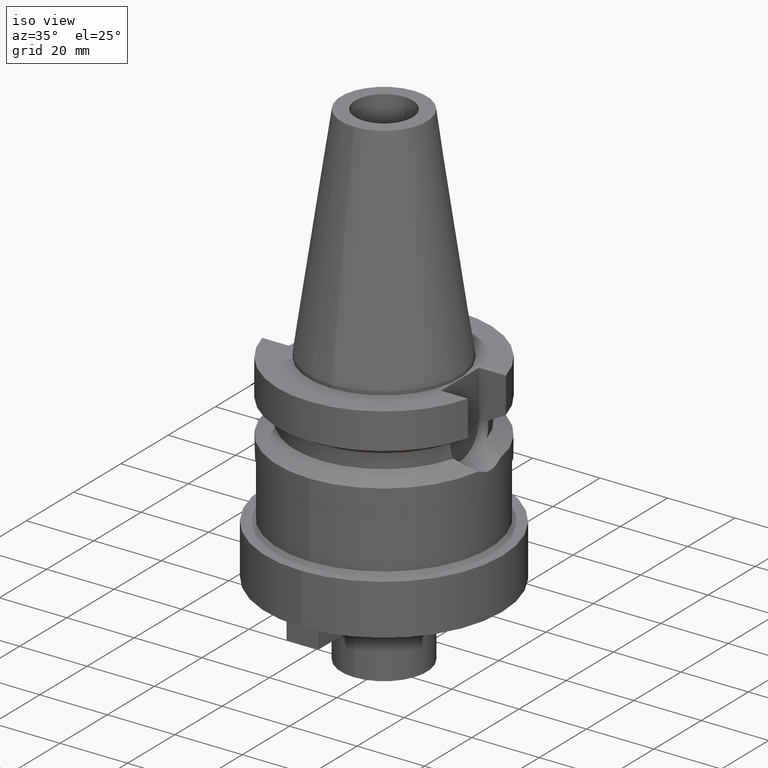
[diagram: clean part render]
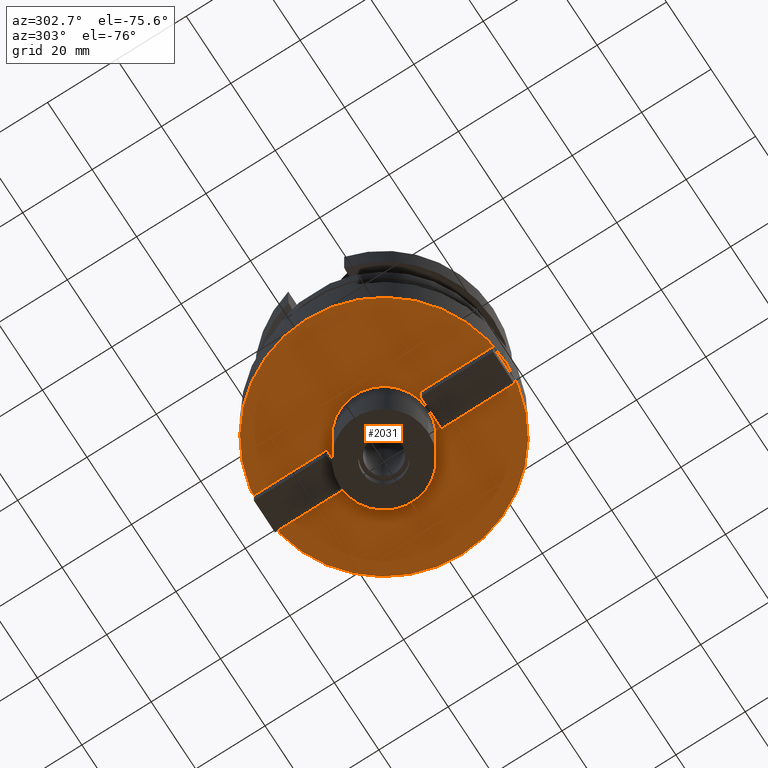
[diagram: tour spotlight — one face highlighted and labeled with its STEP entity id]
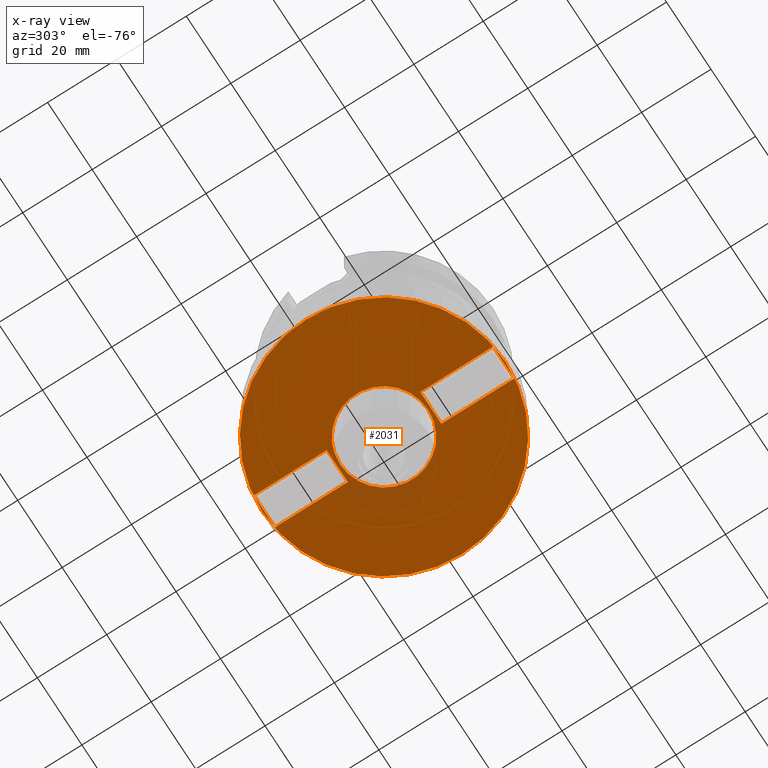
[diagram: x-ray of the same camera — body ghosted, this tour face saturated]
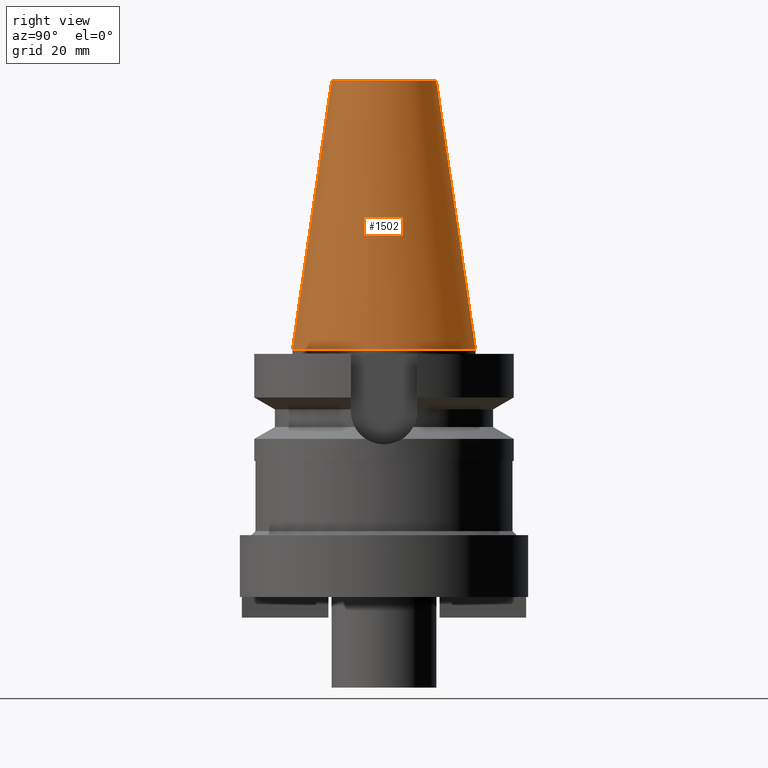
[diagram: tour spotlight — one face highlighted and labeled with its STEP entity id]
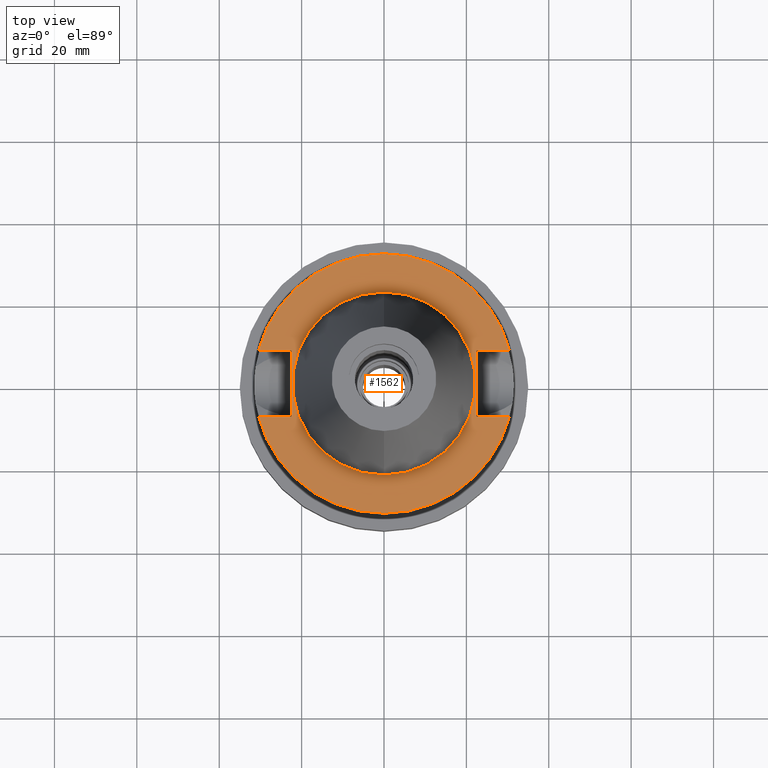
[diagram: tour spotlight — one face highlighted and labeled with its STEP entity id]
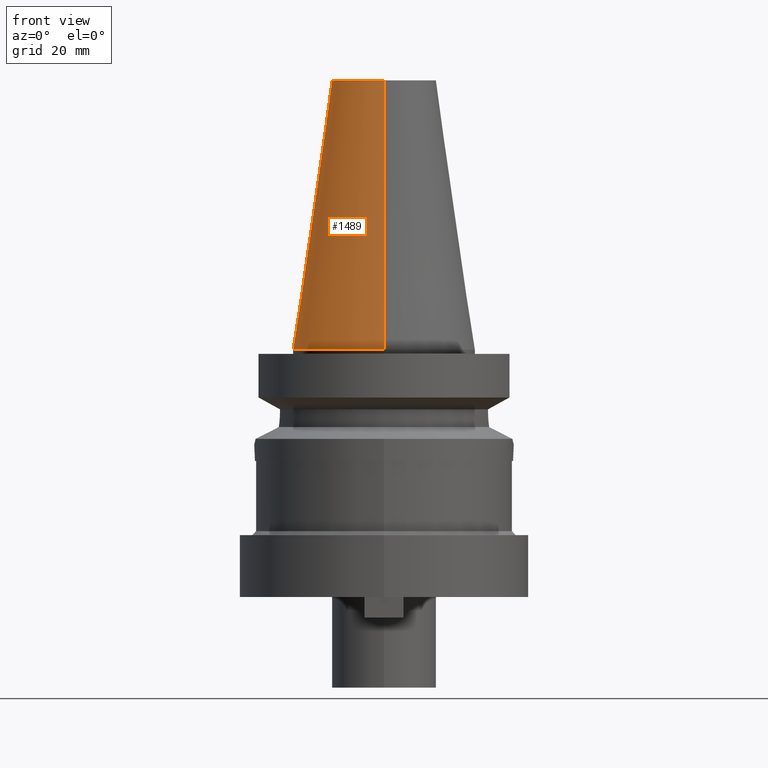
[diagram: tour spotlight — one face highlighted and labeled with its STEP entity id]
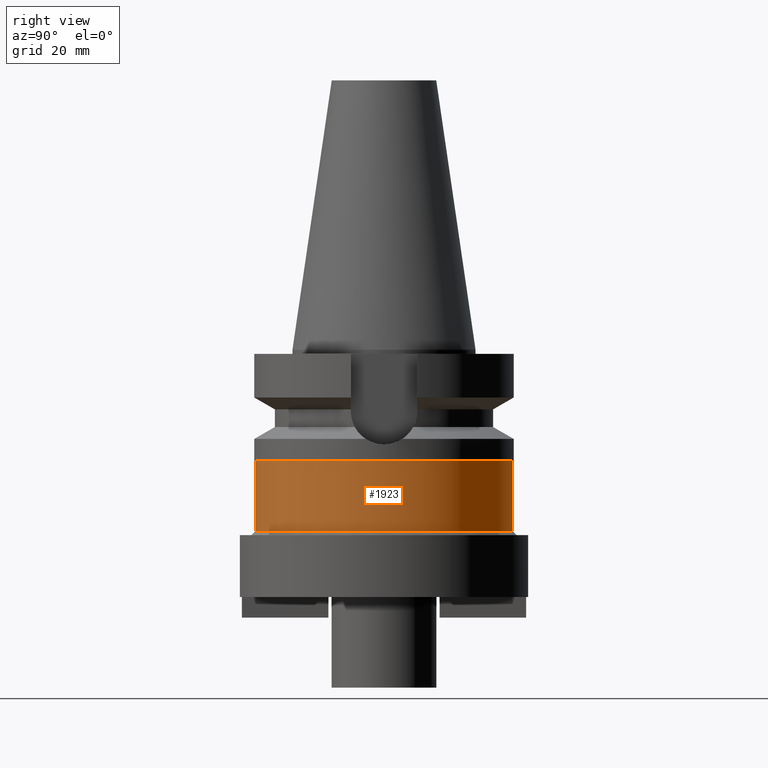
[diagram: tour spotlight — one face highlighted and labeled with its STEP entity id]
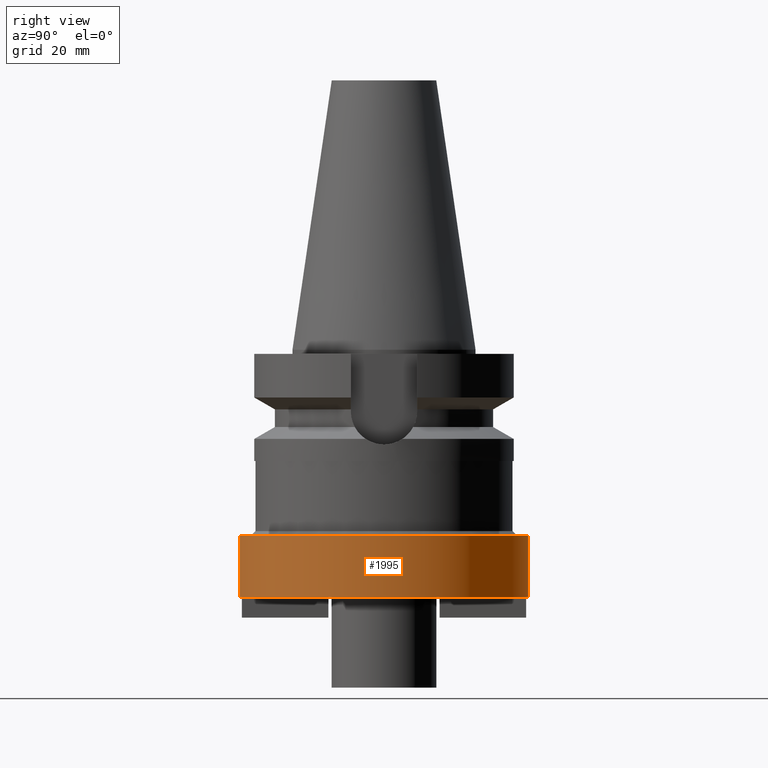
[diagram: tour spotlight — one face highlighted and labeled with its STEP entity id]
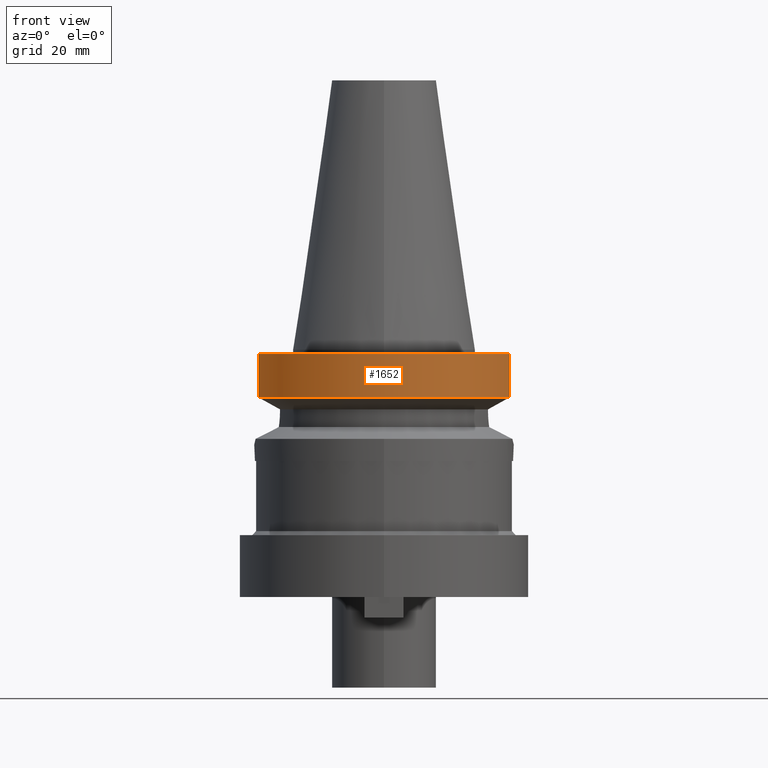
[diagram: tour spotlight — one face highlighted and labeled with its STEP entity id]
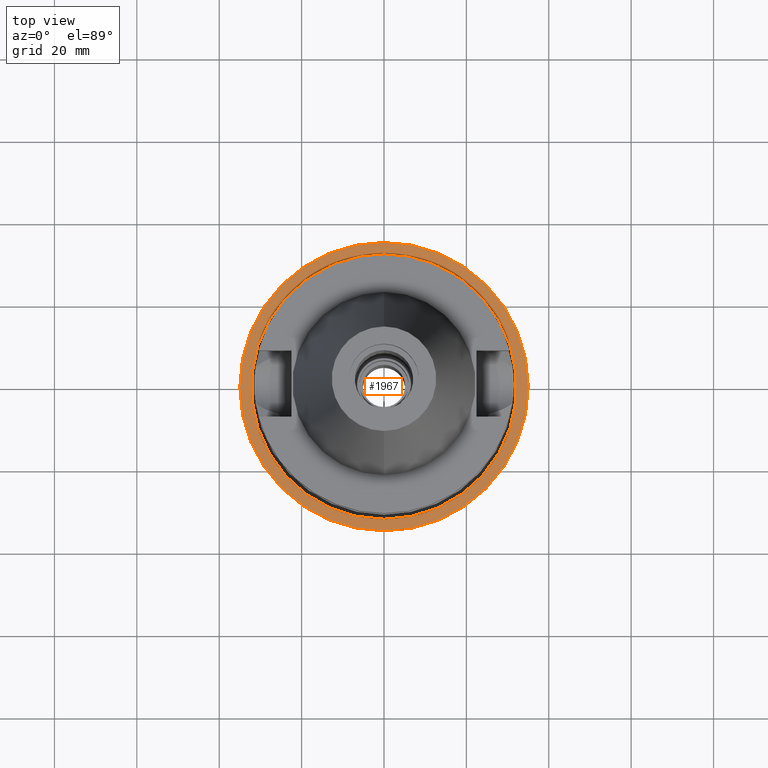
[diagram: tour spotlight — one face highlighted and labeled with its STEP entity id]
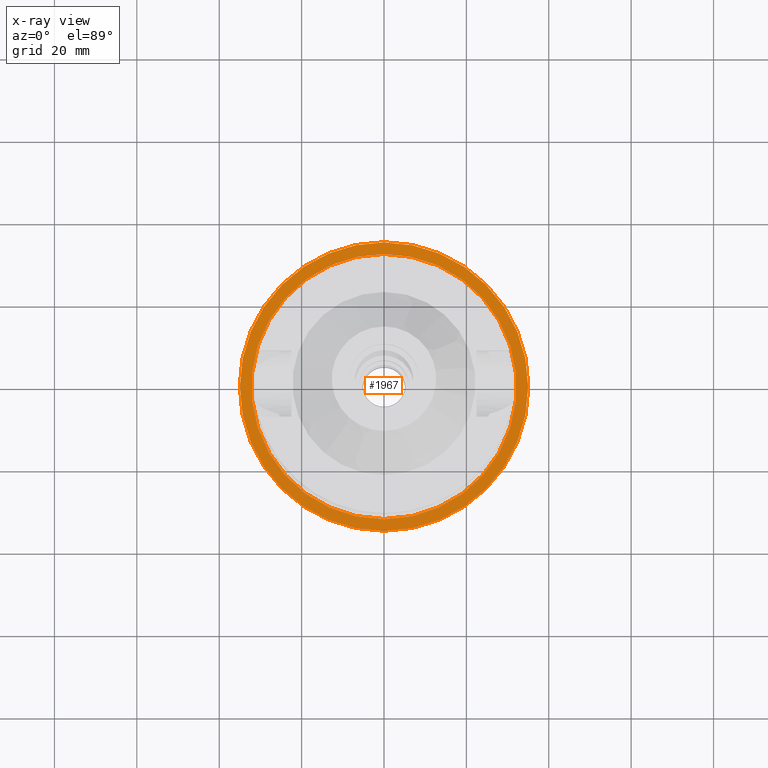
[diagram: x-ray of the same camera — body ghosted, this tour face saturated]
A machine part: a face-by-face anatomy tour. The part has 64 B-rep faces; the first image is the clean iso view, then the 8 largest visible faces are spotlighted one at a time (largest first), each with its STEP entity span.

Face 1 — auxiliary view, entity #2031. An x-ray twin of the same camera follows (body ghosted, this face saturated) — the face is partly hidden behind the body. In plain terms, the highlighted planar face has unit normal (0, 0, -1).
Definition (entity closure, byte-faithful):
#752=CARTESIAN_POINT('',(0.E0,2.115822274887E-14,-6.E1));
#753=DIRECTION('',(0.E0,0.E0,1.E0));
#754=DIRECTION('',(0.E0,-1.E0,0.E0));
#755=AXIS2_PLACEMENT_3D('',#752,#753,#754);
#760=CARTESIAN_POINT('',(0.E0,2.115822274887E-14,-6.E1));
#761=DIRECTION('',(0.E0,0.E0,1.E0));
#762=DIRECTION('',(0.E0,1.E0,0.E0));
#763=AXIS2_PLACEMENT_3D('',#760,#761,#762);
#768=CARTESIAN_POINT('',(0.E0,2.115822274887E-14,-6.E1));
#769=DIRECTION('',(0.E0,0.E0,-1.E0));
#770=DIRECTION('',(0.E0,-1.E0,0.E0));
#771=AXIS2_PLACEMENT_3D('',#768,#769,#770);
#776=CARTESIAN_POINT('',(0.E0,2.115822274887E-14,-6.E1));
#777=DIRECTION('',(0.E0,0.E0,-1.E0));
#778=DIRECTION('',(0.E0,1.E0,0.E0));
#779=AXIS2_PLACEMENT_3D('',#776,#777,#778);
#784=DIRECTION('',(0.E0,1.E0,0.E0));
#785=VECTOR('',#784,2.1E1);
#786=CARTESIAN_POINT('',(-4.75E0,1.35E1,-6.E1));
#787=LINE('',#786,#785);
#791=DIRECTION('',(-1.E0,0.E0,0.E0));
#792=VECTOR('',#791,9.5E0);
#793=CARTESIAN_POINT('',(4.75E0,1.35E1,-6.E1));
#794=LINE('',#793,#792);
#798=DIRECTION('',(0.E0,-1.E0,0.E0));
#799=VECTOR('',#798,2.1E1);
#800=CARTESIAN_POINT('',(4.75E0,-1.35E1,-6.E1));
#801=LINE('',#800,#799);
#805=DIRECTION('',(1.E0,0.E0,0.E0));
#806=VECTOR('',#805,9.5E0);
#807=CARTESIAN_POINT('',(-4.75E0,-1.35E1,-6.E1));
#808=LINE('',#807,#806);
#1130=DIRECTION('',(0.E0,1.E0,0.E0));
#1131=VECTOR('',#1130,2.1E1);
#1132=CARTESIAN_POINT('',(4.75E0,1.35E1,-6.E1));
#1133=LINE('',#1132,#1131);
#1158=DIRECTION('',(-1.E0,0.E0,0.E0));
#1159=VECTOR('',#1158,9.5E0);
#1160=CARTESIAN_POINT('',(4.75E0,3.45E1,-6.E1));
#1161=LINE('',#1160,#1159);
#1200=DIRECTION('',(0.E0,-1.E0,0.E0));
#1201=VECTOR('',#1200,2.1E1);
#1202=CARTESIAN_POINT('',(-4.75E0,-1.35E1,-6.E1));
#1203=LINE('',#1202,#1201);
#1228=DIRECTION('',(1.E0,0.E0,0.E0));
#1229=VECTOR('',#1228,9.5E0);
#1230=CARTESIAN_POINT('',(-4.75E0,-3.45E1,-6.E1));
#1231=LINE('',#1230,#1229);
#1312=CARTESIAN_POINT('',(0.E0,1.27E1,-6.E1));
#1313=VERTEX_POINT('',#1312);
#1314=CARTESIAN_POINT('',(0.E0,-1.27E1,-6.E1));
#1315=VERTEX_POINT('',#1314);
#1316=CARTESIAN_POINT('',(0.E0,-3.5E1,-6.E1));
#1317=CARTESIAN_POINT('',(0.E0,3.5E1,-6.E1));
#1318=VERTEX_POINT('',#1316);
#1319=VERTEX_POINT('',#1317);
#1320=CARTESIAN_POINT('',(-4.75E0,1.35E1,-6.E1));
#1321=CARTESIAN_POINT('',(-4.75E0,3.45E1,-6.E1));
#1322=VERTEX_POINT('',#1320);
#1323=VERTEX_POINT('',#1321);
#1324=CARTESIAN_POINT('',(4.75E0,3.45E1,-6.E1));
#1325=VERTEX_POINT('',#1324);
#1326=CARTESIAN_POINT('',(4.75E0,1.35E1,-6.E1));
#1327=VERTEX_POINT('',#1326);
#1328=CARTESIAN_POINT('',(4.75E0,-1.35E1,-6.E1));
#1329=CARTESIAN_POINT('',(4.75E0,-3.45E1,-6.E1));
#1330=VERTEX_POINT('',#1328);
#1331=VERTEX_POINT('',#1329);
#1332=CARTESIAN_POINT('',(-4.75E0,-3.45E1,-6.E1));
#1333=VERTEX_POINT('',#1332);
#1334=CARTESIAN_POINT('',(-4.75E0,-1.35E1,-6.E1));
#1335=VERTEX_POINT('',#1334);
#1996=CARTESIAN_POINT('',(0.E0,0.E0,-6.E1));
#1997=DIRECTION('',(0.E0,0.E0,-1.E0));
#1998=DIRECTION('',(0.E0,-1.E0,0.E0));
#1999=AXIS2_PLACEMENT_3D('',#1996,#1997,#1998);
#2000=PLANE('',#1999);
#2001=ORIENTED_EDGE('',*,*,#1989,.T.);
#2002=ORIENTED_EDGE('',*,*,#1978,.T.);
#2003=EDGE_LOOP('',(#2001,#2002));
#2004=FACE_OUTER_BOUND('',#2003,.F.);
#2006=ORIENTED_EDGE('',*,*,#2005,.T.);
#2008=ORIENTED_EDGE('',*,*,#2007,.T.);
#2009=EDGE_LOOP('',(#2006,#2008));
#2010=FACE_BOUND('',#2009,.F.);
#2012=ORIENTED_EDGE('',*,*,#2011,.T.);
#2014=ORIENTED_EDGE('',*,*,#2013,.F.);
#2016=ORIENTED_EDGE('',*,*,#2015,.F.);
#2018=ORIENTED_EDGE('',*,*,#2017,.T.);
#2019=EDGE_LOOP('',(#2012,#2014,#2016,#2018));
#2020=FACE_BOUND('',#2019,.F.);
#2022=ORIENTED_EDGE('',*,*,#2021,.T.);
#2024=ORIENTED_EDGE('',*,*,#2023,.F.);
#2026=ORIENTED_EDGE('',*,*,#2025,.F.);
#2028=ORIENTED_EDGE('',*,*,#2027,.T.);
#2029=EDGE_LOOP('',(#2022,#2024,#2026,#2028));
#2030=FACE_BOUND('',#2029,.F.);
#756=CIRCLE('',#755,3.5E1);
#764=CIRCLE('',#763,3.5E1);
#772=CIRCLE('',#771,1.27E1);
#780=CIRCLE('',#779,1.27E1);
#1978=EDGE_CURVE('',#1319,#1318,#764,.T.);
#1989=EDGE_CURVE('',#1318,#1319,#756,.T.);
#2005=EDGE_CURVE('',#1315,#1313,#772,.T.);
#2007=EDGE_CURVE('',#1313,#1315,#780,.T.);
#2011=EDGE_CURVE('',#1322,#1323,#787,.T.);
#2013=EDGE_CURVE('',#1325,#1323,#1161,.T.);
#2015=EDGE_CURVE('',#1327,#1325,#1133,.T.);
#2017=EDGE_CURVE('',#1327,#1322,#794,.T.);
#2021=EDGE_CURVE('',#1330,#1331,#801,.T.);
#2023=EDGE_CURVE('',#1333,#1331,#1231,.T.);
#2025=EDGE_CURVE('',#1335,#1333,#1203,.T.);
#2027=EDGE_CURVE('',#1335,#1330,#808,.T.);
#2031=ADVANCED_FACE('',(#2004,#2010,#2020,#2030),#2000,.T.);

Face 2 — right view, entity #1502. In plain terms, the highlighted conical surface has half-angle 8.297 deg.
Definition (entity closure, byte-faithful):
#26=CARTESIAN_POINT('',(0.E0,1.625106302469E-14,6.54E1));
#27=DIRECTION('',(0.E0,0.E0,-1.E0));
#28=DIRECTION('',(0.E0,1.E0,0.E0));
#29=AXIS2_PLACEMENT_3D('',#26,#27,#28);
#50=DIRECTION('',(0.E0,-1.443043893540E-1,-9.895333461856E-1));
#51=VECTOR('',#50,6.609175956738E1);
#52=CARTESIAN_POINT('',(0.E0,-1.268766899430E1,6.54E1));
#53=LINE('',#52,#51);
#65=DIRECTION('',(0.E0,1.443043893540E-1,-9.895333461856E-1));
#66=VECTOR('',#65,6.609175956738E1);
#67=CARTESIAN_POINT('',(0.E0,1.268766899430E1,6.54E1));
#68=LINE('',#67,#66);
#72=CARTESIAN_POINT('',(0.E0,1.625106302469E-14,2.842170943040E-14));
#73=DIRECTION('',(0.E0,0.E0,-1.E0));
#74=DIRECTION('',(0.E0,1.E0,0.E0));
#75=AXIS2_PLACEMENT_3D('',#72,#73,#74);
#1256=CARTESIAN_POINT('',(0.E0,-1.268766899430E1,6.54E1));
#1257=CARTESIAN_POINT('',(0.E0,1.268766899430E1,6.54E1));
#1258=VERTEX_POINT('',#1256);
#1259=VERTEX_POINT('',#1257);
#1429=CARTESIAN_POINT('',(0.E0,2.2225E1,9.237055564881E-14));
#1430=VERTEX_POINT('',#1429);
#1431=CARTESIAN_POINT('',(0.E0,-2.2225E1,9.237055564881E-14));
#1432=VERTEX_POINT('',#1431);
#1490=CARTESIAN_POINT('',(0.E0,1.625106302469E-14,3.27E1));
#1491=DIRECTION('',(0.E0,0.E0,-1.E0));
#1492=DIRECTION('',(0.E0,-1.E0,0.E0));
#1493=AXIS2_PLACEMENT_3D('',#1490,#1491,#1492);
#1494=CONICAL_SURFACE('',#1493,1.745633449715E1,8.297E0);
#1495=ORIENTED_EDGE('',*,*,#1480,.T.);
#1497=ORIENTED_EDGE('',*,*,#1496,.T.);
#1498=ORIENTED_EDGE('',*,*,#1483,.F.);
#1499=ORIENTED_EDGE('',*,*,#1464,.F.);
#1500=EDGE_LOOP('',(#1495,#1497,#1498,#1499));
#1501=FACE_OUTER_BOUND('',#1500,.F.);
#30=CIRCLE('',#29,1.268766899430E1);
#76=CIRCLE('',#75,2.2225E1);
#1464=EDGE_CURVE('',#1259,#1258,#30,.T.);
#1480=EDGE_CURVE('',#1259,#1430,#68,.T.);
#1483=EDGE_CURVE('',#1258,#1432,#53,.T.);
#1496=EDGE_CURVE('',#1430,#1432,#76,.T.);
#1502=ADVANCED_FACE('',(#1501),#1494,.T.);

Face 3 — top view, entity #1562. In plain terms, the highlighted planar face has unit normal (0, 0, -1).
Definition (entity closure, byte-faithful):
#94=DIRECTION('',(0.E0,1.E0,0.E0));
#95=VECTOR('',#94,1.61E1);
#96=CARTESIAN_POINT('',(-2.25E1,-8.05E0,-1.E0));
#97=LINE('',#96,#95);
#101=DIRECTION('',(-1.E0,-3.550916904668E-14,0.E0));
#102=VECTOR('',#101,7.954022722788E0);
#103=CARTESIAN_POINT('',(-2.25E1,8.05E0,-1.E0));
#104=LINE('',#103,#102);
#108=CARTESIAN_POINT('',(0.E0,2.115822274887E-14,-1.E0));
#109=DIRECTION('',(0.E0,0.E0,-1.E0));
#110=DIRECTION('',(-9.667943721520E-1,2.555555555556E-1,0.E0));
#111=AXIS2_PLACEMENT_3D('',#108,#109,#110);
#116=CARTESIAN_POINT('',(0.E0,2.115822274887E-14,-1.E0));
#117=DIRECTION('',(0.E0,0.E0,-1.E0));
#118=DIRECTION('',(0.E0,1.E0,0.E0));
#119=AXIS2_PLACEMENT_3D('',#116,#117,#118);
#124=DIRECTION('',(0.E0,-1.E0,0.E0));
#125=VECTOR('',#124,1.61E1);
#126=CARTESIAN_POINT('',(2.25E1,8.05E0,-1.E0));
#127=LINE('',#126,#125);
#131=DIRECTION('',(1.E0,3.573249715390E-14,0.E0));
#132=VECTOR('',#131,7.954022722788E0);
#133=CARTESIAN_POINT('',(2.25E1,-8.05E0,-1.E0));
#134=LINE('',#133,#132);
#138=CARTESIAN_POINT('',(0.E0,2.115822274887E-14,-1.E0));
#139=DIRECTION('',(0.E0,0.E0,-1.E0));
#140=DIRECTION('',(9.667943721520E-1,-2.555555555556E-1,0.E0));
#141=AXIS2_PLACEMENT_3D('',#138,#139,#140);
#146=CARTESIAN_POINT('',(0.E0,2.115822274887E-14,-1.E0));
#147=DIRECTION('',(0.E0,0.E0,-1.E0));
#148=DIRECTION('',(0.E0,-1.E0,0.E0));
#149=AXIS2_PLACEMENT_3D('',#146,#147,#148);
#154=CARTESIAN_POINT('',(0.E0,2.115822274887E-14,-1.E0));
#155=DIRECTION('',(0.E0,0.E0,1.E0));
#156=DIRECTION('',(0.E0,-1.E0,0.E0));
#157=AXIS2_PLACEMENT_3D('',#154,#155,#156);
#162=CARTESIAN_POINT('',(0.E0,2.115822274887E-14,-1.E0));
#163=DIRECTION('',(0.E0,0.E0,1.E0));
#164=DIRECTION('',(0.E0,1.E0,0.E0));
#165=AXIS2_PLACEMENT_3D('',#162,#163,#164);
#200=DIRECTION('',(-1.E0,3.550916904668E-14,0.E0));
#201=VECTOR('',#200,7.954022722788E0);
#202=CARTESIAN_POINT('',(-2.25E1,-8.05E0,-1.E0));
#203=LINE('',#202,#201);
#337=DIRECTION('',(1.E0,-3.506251283226E-14,0.E0));
#338=VECTOR('',#337,7.954022722788E0);
#339=CARTESIAN_POINT('',(2.25E1,8.05E0,-1.E0));
#340=LINE('',#339,#338);
#1403=CARTESIAN_POINT('',(-2.25E1,-8.05E0,-1.E0));
#1404=VERTEX_POINT('',#1403);
#1405=CARTESIAN_POINT('',(-3.045402272279E1,-8.05E0,-1.E0));
#1406=VERTEX_POINT('',#1405);
#1409=CARTESIAN_POINT('',(-2.25E1,8.05E0,-1.E0));
#1410=VERTEX_POINT('',#1409);
#1411=CARTESIAN_POINT('',(-3.045402272279E1,8.05E0,-1.E0));
#1412=VERTEX_POINT('',#1411);
#1413=CARTESIAN_POINT('',(-3.046555054451E-14,3.15E1,-1.E0));
#1414=CARTESIAN_POINT('',(3.045402272279E1,8.05E0,-1.E0));
#1415=VERTEX_POINT('',#1413);
#1416=VERTEX_POINT('',#1414);
#1417=CARTESIAN_POINT('',(2.25E1,8.05E0,-1.E0));
#1418=VERTEX_POINT('',#1417);
#1419=CARTESIAN_POINT('',(2.25E1,-8.05E0,-1.E0));
#1420=VERTEX_POINT('',#1419);
#1421=CARTESIAN_POINT('',(3.045402272279E1,-8.05E0,-1.E0));
#1422=VERTEX_POINT('',#1421);
#1423=CARTESIAN_POINT('',(3.046555054450E-14,-3.15E1,-1.E0));
#1424=VERTEX_POINT('',#1423);
#1425=CARTESIAN_POINT('',(0.E0,-2.2225E1,-1.E0));
#1426=CARTESIAN_POINT('',(0.E0,2.2225E1,-1.E0));
#1427=VERTEX_POINT('',#1425);
#1428=VERTEX_POINT('',#1426);
#1531=CARTESIAN_POINT('',(0.E0,1.212400331156E-14,-1.E0));
#1532=DIRECTION('',(0.E0,0.E0,-1.E0));
#1533=DIRECTION('',(0.E0,-1.E0,0.E0));
#1534=AXIS2_PLACEMENT_3D('',#1531,#1532,#1533);
#1535=PLANE('',#1534);
#1537=ORIENTED_EDGE('',*,*,#1536,.T.);
#1539=ORIENTED_EDGE('',*,*,#1538,.T.);
#1541=ORIENTED_EDGE('',*,*,#1540,.T.);
#1543=ORIENTED_EDGE('',*,*,#1542,.T.);
#1545=ORIENTED_EDGE('',*,*,#1544,.F.);
#1547=ORIENTED_EDGE('',*,*,#1546,.T.);
#1549=ORIENTED_EDGE('',*,*,#1548,.T.);
#1551=ORIENTED_EDGE('',*,*,#1550,.T.);
#1553=ORIENTED_EDGE('',*,*,#1552,.T.);
#1555=ORIENTED_EDGE('',*,*,#1554,.F.);
#1556=EDGE_LOOP('',(#1537,#1539,#1541,#1543,#1545,#1547,#1549,#1551,#1553,
#1555));
#1557=FACE_OUTER_BOUND('',#1556,.F.);
#1558=ORIENTED_EDGE('',*,*,#1510,.T.);
#1559=ORIENTED_EDGE('',*,*,#1526,.T.);
#1560=EDGE_LOOP('',(#1558,#1559));
#1561=FACE_BOUND('',#1560,.F.);
#112=CIRCLE('',#111,3.15E1);
#120=CIRCLE('',#119,3.15E1);
#142=CIRCLE('',#141,3.15E1);
#150=CIRCLE('',#149,3.15E1);
#158=CIRCLE('',#157,2.2225E1);
#166=CIRCLE('',#165,2.2225E1);
#1510=EDGE_CURVE('',#1427,#1428,#158,.T.);
#1526=EDGE_CURVE('',#1428,#1427,#166,.T.);
#1536=EDGE_CURVE('',#1404,#1410,#97,.T.);
#1538=EDGE_CURVE('',#1410,#1412,#104,.T.);
#1540=EDGE_CURVE('',#1412,#1415,#112,.T.);
#1542=EDGE_CURVE('',#1415,#1416,#120,.T.);
#1544=EDGE_CURVE('',#1418,#1416,#340,.T.);
#1546=EDGE_CURVE('',#1418,#1420,#127,.T.);
#1548=EDGE_CURVE('',#1420,#1422,#134,.T.);
#1550=EDGE_CURVE('',#1422,#1424,#142,.T.);
#1552=EDGE_CURVE('',#1424,#1406,#150,.T.);
#1554=EDGE_CURVE('',#1404,#1406,#203,.T.);
#1562=ADVANCED_FACE('',(#1557,#1561),#1535,.F.);

Face 4 — front view, entity #1489. In plain terms, the highlighted conical surface has half-angle 8.297 deg.
Definition (entity closure, byte-faithful):
#17=CARTESIAN_POINT('',(0.E0,1.625106302469E-14,6.54E1));
#18=DIRECTION('',(0.E0,0.E0,-1.E0));
#19=DIRECTION('',(0.E0,-1.E0,0.E0));
#20=AXIS2_PLACEMENT_3D('',#17,#18,#19);
#50=DIRECTION('',(0.E0,-1.443043893540E-1,-9.895333461856E-1));
#51=VECTOR('',#50,6.609175956738E1);
#52=CARTESIAN_POINT('',(0.E0,-1.268766899430E1,6.54E1));
#53=LINE('',#52,#51);
#57=CARTESIAN_POINT('',(0.E0,1.625106302469E-14,2.842170943040E-14));
#58=DIRECTION('',(0.E0,0.E0,-1.E0));
#59=DIRECTION('',(0.E0,-1.E0,0.E0));
#60=AXIS2_PLACEMENT_3D('',#57,#58,#59);
#65=DIRECTION('',(0.E0,1.443043893540E-1,-9.895333461856E-1));
#66=VECTOR('',#65,6.609175956738E1);
#67=CARTESIAN_POINT('',(0.E0,1.268766899430E1,6.54E1));
#68=LINE('',#67,#66);
#1256=CARTESIAN_POINT('',(0.E0,-1.268766899430E1,6.54E1));
#1257=CARTESIAN_POINT('',(0.E0,1.268766899430E1,6.54E1));
#1258=VERTEX_POINT('',#1256);
#1259=VERTEX_POINT('',#1257);
#1429=CARTESIAN_POINT('',(0.E0,2.2225E1,9.237055564881E-14));
#1430=VERTEX_POINT('',#1429);
#1431=CARTESIAN_POINT('',(0.E0,-2.2225E1,9.237055564881E-14));
#1432=VERTEX_POINT('',#1431);
#1475=CARTESIAN_POINT('',(0.E0,1.625106302469E-14,3.27E1));
#1476=DIRECTION('',(0.E0,0.E0,-1.E0));
#1477=DIRECTION('',(0.E0,-1.E0,0.E0));
#1478=AXIS2_PLACEMENT_3D('',#1475,#1476,#1477);
#1479=CONICAL_SURFACE('',#1478,1.745633449715E1,8.297E0);
#1481=ORIENTED_EDGE('',*,*,#1480,.F.);
#1482=ORIENTED_EDGE('',*,*,#1462,.F.);
#1484=ORIENTED_EDGE('',*,*,#1483,.T.);
#1486=ORIENTED_EDGE('',*,*,#1485,.T.);
#1487=EDGE_LOOP('',(#1481,#1482,#1484,#1486));
#1488=FACE_OUTER_BOUND('',#1487,.F.);
#21=CIRCLE('',#20,1.268766899430E1);
#61=CIRCLE('',#60,2.2225E1);
#1462=EDGE_CURVE('',#1258,#1259,#21,.T.);
#1480=EDGE_CURVE('',#1259,#1430,#68,.T.);
#1483=EDGE_CURVE('',#1258,#1432,#53,.T.);
#1485=EDGE_CURVE('',#1432,#1430,#61,.T.);
#1489=ADVANCED_FACE('',(#1488),#1479,.T.);

Face 5 — right view, entity #1923. In plain terms, the highlighted cylindrical surface (partial cylindrical patch) has radius 31.2 mm, axis along (0, 0, -1).
Definition (entity closure, byte-faithful):
#654=CARTESIAN_POINT('',(0.E0,2.115822274887E-14,-2.7E1));
#655=DIRECTION('',(0.E0,0.E0,-1.E0));
#656=DIRECTION('',(0.E0,1.E0,0.E0));
#657=AXIS2_PLACEMENT_3D('',#654,#655,#656);
#662=DIRECTION('',(0.E0,0.E0,-1.E0));
#663=VECTOR('',#662,1.7E1);
#664=CARTESIAN_POINT('',(0.E0,-3.12E1,-2.7E1));
#665=LINE('',#664,#663);
#669=DIRECTION('',(0.E0,0.E0,-1.E0));
#670=VECTOR('',#669,1.7E1);
#671=CARTESIAN_POINT('',(0.E0,3.12E1,-2.7E1));
#672=LINE('',#671,#670);
#683=CARTESIAN_POINT('',(0.E0,0.E0,-4.4E1));
#684=DIRECTION('',(0.E0,0.E0,1.E0));
#685=DIRECTION('',(0.E0,-1.E0,0.E0));
#686=AXIS2_PLACEMENT_3D('',#683,#684,#685);
#1344=CARTESIAN_POINT('',(0.E0,3.12E1,-4.4E1));
#1345=VERTEX_POINT('',#1344);
#1346=CARTESIAN_POINT('',(0.E0,-3.12E1,-4.4E1));
#1347=VERTEX_POINT('',#1346);
#1348=CARTESIAN_POINT('',(0.E0,3.12E1,-2.7E1));
#1349=VERTEX_POINT('',#1348);
#1350=CARTESIAN_POINT('',(0.E0,-3.12E1,-2.7E1));
#1351=VERTEX_POINT('',#1350);
#1911=CARTESIAN_POINT('',(0.E0,2.115822274887E-14,7.277E1));
#1912=DIRECTION('',(0.E0,0.E0,-1.E0));
#1913=DIRECTION('',(0.E0,-1.E0,0.E0));
#1914=AXIS2_PLACEMENT_3D('',#1911,#1912,#1913);
#1915=CYLINDRICAL_SURFACE('',#1914,3.12E1);
#1916=ORIENTED_EDGE('',*,*,#1901,.T.);
#1918=ORIENTED_EDGE('',*,*,#1917,.F.);
#1919=ORIENTED_EDGE('',*,*,#1904,.F.);
#1920=ORIENTED_EDGE('',*,*,#1891,.F.);
#1921=EDGE_LOOP('',(#1916,#1918,#1919,#1920));
#1922=FACE_OUTER_BOUND('',#1921,.F.);
#658=CIRCLE('',#657,3.12E1);
#687=CIRCLE('',#686,3.12E1);
#1891=EDGE_CURVE('',#1349,#1351,#658,.T.);
#1901=EDGE_CURVE('',#1349,#1345,#672,.T.);
#1904=EDGE_CURVE('',#1351,#1347,#665,.T.);
#1917=EDGE_CURVE('',#1347,#1345,#687,.T.);
#1923=ADVANCED_FACE('',(#1922),#1915,.T.);

Face 6 — right view, entity #1995. In plain terms, the highlighted cylindrical surface (partial cylindrical patch) has radius 35 mm, axis along (0, 0, -1).
Definition (entity closure, byte-faithful):
#714=CARTESIAN_POINT('',(0.E0,2.115822274887E-14,-4.5E1));
#715=DIRECTION('',(0.E0,0.E0,-1.E0));
#716=DIRECTION('',(0.E0,1.E0,0.E0));
#717=AXIS2_PLACEMENT_3D('',#714,#715,#716);
#738=DIRECTION('',(0.E0,0.E0,-1.E0));
#739=VECTOR('',#738,1.5E1);
#740=CARTESIAN_POINT('',(0.E0,-3.5E1,-4.5E1));
#741=LINE('',#740,#739);
#745=DIRECTION('',(0.E0,0.E0,-1.E0));
#746=VECTOR('',#745,1.5E1);
#747=CARTESIAN_POINT('',(0.E0,3.5E1,-4.5E1));
#748=LINE('',#747,#746);
#752=CARTESIAN_POINT('',(0.E0,2.115822274887E-14,-6.E1));
#753=DIRECTION('',(0.E0,0.E0,1.E0));
#754=DIRECTION('',(0.E0,-1.E0,0.E0));
#755=AXIS2_PLACEMENT_3D('',#752,#753,#754);
#1316=CARTESIAN_POINT('',(0.E0,-3.5E1,-6.E1));
#1317=CARTESIAN_POINT('',(0.E0,3.5E1,-6.E1));
#1318=VERTEX_POINT('',#1316);
#1319=VERTEX_POINT('',#1317);
#1336=CARTESIAN_POINT('',(0.E0,3.5E1,-4.5E1));
#1337=VERTEX_POINT('',#1336);
#1338=CARTESIAN_POINT('',(0.E0,-3.5E1,-4.5E1));
#1339=VERTEX_POINT('',#1338);
#1983=CARTESIAN_POINT('',(0.E0,2.115822274887E-14,7.277E1));
#1984=DIRECTION('',(0.E0,0.E0,-1.E0));
#1985=DIRECTION('',(0.E0,-1.E0,0.E0));
#1986=AXIS2_PLACEMENT_3D('',#1983,#1984,#1985);
#1987=CYLINDRICAL_SURFACE('',#1986,3.5E1);
#1988=ORIENTED_EDGE('',*,*,#1973,.T.);
#1990=ORIENTED_EDGE('',*,*,#1989,.F.);
#1991=ORIENTED_EDGE('',*,*,#1976,.F.);
#1992=ORIENTED_EDGE('',*,*,#1959,.F.);
#1993=EDGE_LOOP('',(#1988,#1990,#1991,#1992));
#1994=FACE_OUTER_BOUND('',#1993,.F.);
#718=CIRCLE('',#717,3.5E1);
#756=CIRCLE('',#755,3.5E1);
#1959=EDGE_CURVE('',#1337,#1339,#718,.T.);
#1973=EDGE_CURVE('',#1337,#1319,#748,.T.);
#1976=EDGE_CURVE('',#1339,#1318,#741,.T.);
#1989=EDGE_CURVE('',#1318,#1319,#756,.T.);
#1995=ADVANCED_FACE('',(#1994),#1987,.T.);

Face 7 — front view, entity #1652. In plain terms, the highlighted cylindrical surface (partial cylindrical patch) has radius 31.5 mm, axis along (0, 0, -1).
Definition (entity closure, byte-faithful):
#138=CARTESIAN_POINT('',(0.E0,2.115822274887E-14,-1.E0));
#139=DIRECTION('',(0.E0,0.E0,-1.E0));
#140=DIRECTION('',(9.667943721520E-1,-2.555555555556E-1,0.E0));
#141=AXIS2_PLACEMENT_3D('',#138,#139,#140);
#146=CARTESIAN_POINT('',(0.E0,2.115822274887E-14,-1.E0));
#147=DIRECTION('',(0.E0,0.E0,-1.E0));
#148=DIRECTION('',(0.E0,-1.E0,0.E0));
#149=AXIS2_PLACEMENT_3D('',#146,#147,#148);
#251=CARTESIAN_POINT('',(0.E0,1.065333950388E-14,-1.156550565267E1));
#252=DIRECTION('',(0.E0,0.E0,1.E0));
#253=DIRECTION('',(-9.667943721520E-1,-2.555555555555E-1,0.E0));
#254=AXIS2_PLACEMENT_3D('',#251,#252,#253);
#259=CARTESIAN_POINT('',(0.E0,1.065333950388E-14,-1.156550565267E1));
#260=DIRECTION('',(0.E0,0.E0,1.E0));
#261=DIRECTION('',(0.E0,-1.E0,0.E0));
#262=AXIS2_PLACEMENT_3D('',#259,#260,#261);
#283=DIRECTION('',(1.808238156437E-8,-6.840784682042E-8,1.E0));
#284=VECTOR('',#283,1.056551216245E1);
#285=CARTESIAN_POINT('',(-3.045402291384E1,-8.049999277236E0,
-1.156551216245E1));
#286=LINE('',#285,#284);
#290=DIRECTION('',(-1.037337572526E-7,-3.924355154948E-7,-9.999999999999E-1));
#291=VECTOR('',#290,1.056546830488E1);
#292=CARTESIAN_POINT('',(3.045402272279E1,-8.05E0,-1.E0));
#293=LINE('',#292,#291);
#1405=CARTESIAN_POINT('',(-3.045402272279E1,-8.05E0,-1.E0));
#1406=VERTEX_POINT('',#1405);
#1407=CARTESIAN_POINT('',(-3.045402291384E1,-8.049999277236E0,
-1.156551216245E1));
#1408=VERTEX_POINT('',#1407);
#1421=CARTESIAN_POINT('',(3.045402272279E1,-8.05E0,-1.E0));
#1422=VERTEX_POINT('',#1421);
#1423=CARTESIAN_POINT('',(3.046555054450E-14,-3.15E1,-1.E0));
#1424=VERTEX_POINT('',#1423);
#1434=CARTESIAN_POINT('',(0.E0,-3.15E1,-1.156550565267E1));
#1435=CARTESIAN_POINT('',(3.045402272279E1,-8.049999999999E0,
-1.156550565267E1));
#1436=VERTEX_POINT('',#1434);
#1437=VERTEX_POINT('',#1435);
#1638=CARTESIAN_POINT('',(0.E0,2.115822274887E-14,7.277E1));
#1639=DIRECTION('',(0.E0,0.E0,-1.E0));
#1640=DIRECTION('',(0.E0,-1.E0,0.E0));
#1641=AXIS2_PLACEMENT_3D('',#1638,#1639,#1640);
#1642=CYLINDRICAL_SURFACE('',#1641,3.15E1);
#1643=ORIENTED_EDGE('',*,*,#1591,.T.);
#1644=ORIENTED_EDGE('',*,*,#1552,.F.);
#1645=ORIENTED_EDGE('',*,*,#1550,.F.);
#1647=ORIENTED_EDGE('',*,*,#1646,.T.);
#1648=ORIENTED_EDGE('',*,*,#1629,.F.);
#1649=ORIENTED_EDGE('',*,*,#1627,.F.);
#1650=EDGE_LOOP('',(#1643,#1644,#1645,#1647,#1648,#1649));
#1651=FACE_OUTER_BOUND('',#1650,.F.);
#142=CIRCLE('',#141,3.15E1);
#150=CIRCLE('',#149,3.15E1);
#255=CIRCLE('',#254,3.15E1);
#263=CIRCLE('',#262,3.15E1);
#1550=EDGE_CURVE('',#1422,#1424,#142,.T.);
#1552=EDGE_CURVE('',#1424,#1406,#150,.T.);
#1591=EDGE_CURVE('',#1408,#1406,#286,.T.);
#1627=EDGE_CURVE('',#1408,#1436,#255,.T.);
#1629=EDGE_CURVE('',#1436,#1437,#263,.T.);
#1646=EDGE_CURVE('',#1422,#1437,#293,.T.);
#1652=ADVANCED_FACE('',(#1651),#1642,.T.);

Face 8 — top view, entity #1967. An x-ray twin of the same camera follows (body ghosted, this face saturated) — the face is partly hidden behind the body. In plain terms, the highlighted planar face has unit normal (0, 0, -1).
Definition (entity closure, byte-faithful):
#706=CARTESIAN_POINT('',(0.E0,2.115822274887E-14,-4.5E1));
#707=DIRECTION('',(0.E0,0.E0,-1.E0));
#708=DIRECTION('',(0.E0,-1.E0,0.E0));
#709=AXIS2_PLACEMENT_3D('',#706,#707,#708);
#714=CARTESIAN_POINT('',(0.E0,2.115822274887E-14,-4.5E1));
#715=DIRECTION('',(0.E0,0.E0,-1.E0));
#716=DIRECTION('',(0.E0,1.E0,0.E0));
#717=AXIS2_PLACEMENT_3D('',#714,#715,#716);
#722=CARTESIAN_POINT('',(0.E0,0.E0,-4.5E1));
#723=DIRECTION('',(0.E0,0.E0,1.E0));
#724=DIRECTION('',(0.E0,-1.E0,0.E0));
#725=AXIS2_PLACEMENT_3D('',#722,#723,#724);
#730=CARTESIAN_POINT('',(0.E0,0.E0,-4.5E1));
#731=DIRECTION('',(0.E0,0.E0,1.E0));
#732=DIRECTION('',(0.E0,1.E0,0.E0));
#733=AXIS2_PLACEMENT_3D('',#730,#731,#732);
#1336=CARTESIAN_POINT('',(0.E0,3.5E1,-4.5E1));
#1337=VERTEX_POINT('',#1336);
#1338=CARTESIAN_POINT('',(0.E0,-3.5E1,-4.5E1));
#1339=VERTEX_POINT('',#1338);
#1340=CARTESIAN_POINT('',(0.E0,-3.22E1,-4.5E1));
#1341=CARTESIAN_POINT('',(0.E0,3.22E1,-4.5E1));
#1342=VERTEX_POINT('',#1340);
#1343=VERTEX_POINT('',#1341);
#1952=CARTESIAN_POINT('',(0.E0,0.E0,-4.5E1));
#1953=DIRECTION('',(0.E0,0.E0,-1.E0));
#1954=DIRECTION('',(0.E0,-1.E0,0.E0));
#1955=AXIS2_PLACEMENT_3D('',#1952,#1953,#1954);
#1956=PLANE('',#1955);
#1958=ORIENTED_EDGE('',*,*,#1957,.T.);
#1960=ORIENTED_EDGE('',*,*,#1959,.T.);
#1961=EDGE_LOOP('',(#1958,#1960));
#1962=FACE_OUTER_BOUND('',#1961,.F.);
#1963=ORIENTED_EDGE('',*,*,#1931,.T.);
#1964=ORIENTED_EDGE('',*,*,#1947,.T.);
#1965=EDGE_LOOP('',(#1963,#1964));
#1966=FACE_BOUND('',#1965,.F.);
#710=CIRCLE('',#709,3.5E1);
#718=CIRCLE('',#717,3.5E1);
#726=CIRCLE('',#725,3.22E1);
#734=CIRCLE('',#733,3.22E1);
#1931=EDGE_CURVE('',#1342,#1343,#726,.T.);
#1947=EDGE_CURVE('',#1343,#1342,#734,.T.);
#1957=EDGE_CURVE('',#1339,#1337,#710,.T.);
#1959=EDGE_CURVE('',#1337,#1339,#718,.T.);
#1967=ADVANCED_FACE('',(#1962,#1966),#1956,.F.);